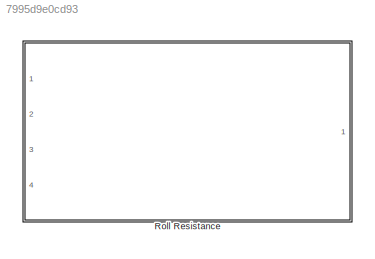
MODEL slx_7995d9e0cd93
KIND library
CONFIG AbsTol = auto
CONFIG EnableMultiTasking = off
CONFIG FixedStep = auto
CONFIG MaxStep = auto
CONFIG MinStep = auto
CONFIG RelTol = 1e-3
CONFIG SampleTimeConstraint = Unconstrained
CONFIG Solver = VariableStepAuto
CONFIG SolverName = VariableStepAuto
CONFIG StartTime = 0.0
CONFIG StopTime = 10.0
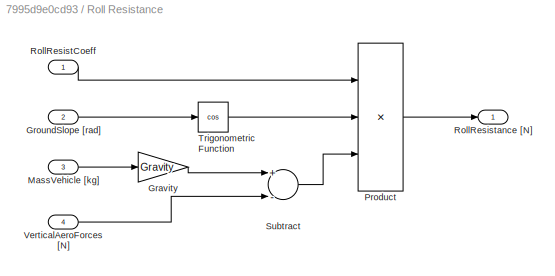
BLOCK [SubSystem] Roll Resistance
  Ports = [4, 1]
  RequestExecContextInheritance = off
BLOCK [Gain] Roll Resistance/Gravity
  Gain = Gravity
  OutDataTypeStr = Inherit: Inherit via internal rule
  ParamDataTypeStr = Inherit: Inherit via internal rule
  SaturateOnIntegerOverflow = off
BLOCK [Inport] Roll Resistance/GroundSlope [rad]
  IconDisplay = Port number
  Port = 2
  SampleTime = LocalSampleTime
BLOCK [Inport] Roll Resistance/MassVehicle [kg]
  IconDisplay = Port number
  Port = 3
  SampleTime = LocalSampleTime
BLOCK [Product] Roll Resistance/Product
  InputSameDT = off
  Inputs = 3
  OutDataTypeStr = Inherit: Inherit via internal rule
  Ports = [3, 1]
  RndMeth = Floor
  SaturateOnIntegerOverflow = off
BLOCK [Inport] Roll Resistance/RollResistCoeff
  IconDisplay = Port number
  SampleTime = LocalSampleTime
BLOCK [Outport] Roll Resistance/RollResistance [N]
  IconDisplay = Port number
  SampleTime = GlobalSampleTime
BLOCK [Sum] Roll Resistance/Subtract
  InputSameDT = off
  Inputs = +-
  OutDataTypeStr = Inherit: Inherit via internal rule
  Ports = [2, 1]
  SaturateOnIntegerOverflow = off
BLOCK [Trigonometry] Roll Resistance/Trigonometric Function
  Operator = cos
  Ports = [1, 1]
BLOCK [Inport] Roll Resistance/VerticalAeroForces [N]
  IconDisplay = Port number
  Port = 4
  SampleTime = LocalSampleTime
LINE Roll Resistance/Gravity:1 -> Roll Resistance/Subtract:1
LINE Roll Resistance/GroundSlope [rad]:1 -> Roll Resistance/Trigonometric Function:1
LINE Roll Resistance/MassVehicle [kg]:1 -> Roll Resistance/Gravity:1
LINE Roll Resistance/Product:1 -> Roll Resistance/RollResistance [N]:1
LINE Roll Resistance/RollResistCoeff:1 -> Roll Resistance/Product:1
LINE Roll Resistance/Subtract:1 -> Roll Resistance/Product:3
LINE Roll Resistance/Trigonometric Function:1 -> Roll Resistance/Product:2
LINE Roll Resistance/VerticalAeroForces [N]:1 -> Roll Resistance/Subtract:2
